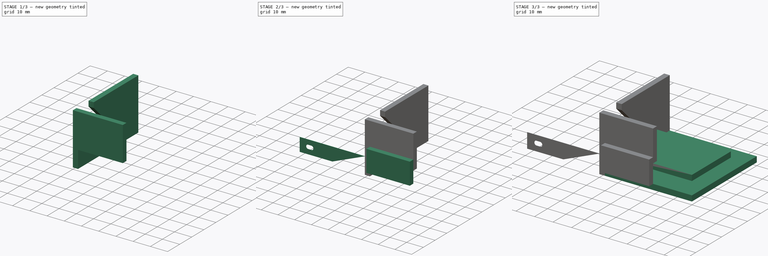
[diagram: build sequence overview — one tinted view per stage of 3, left to right]
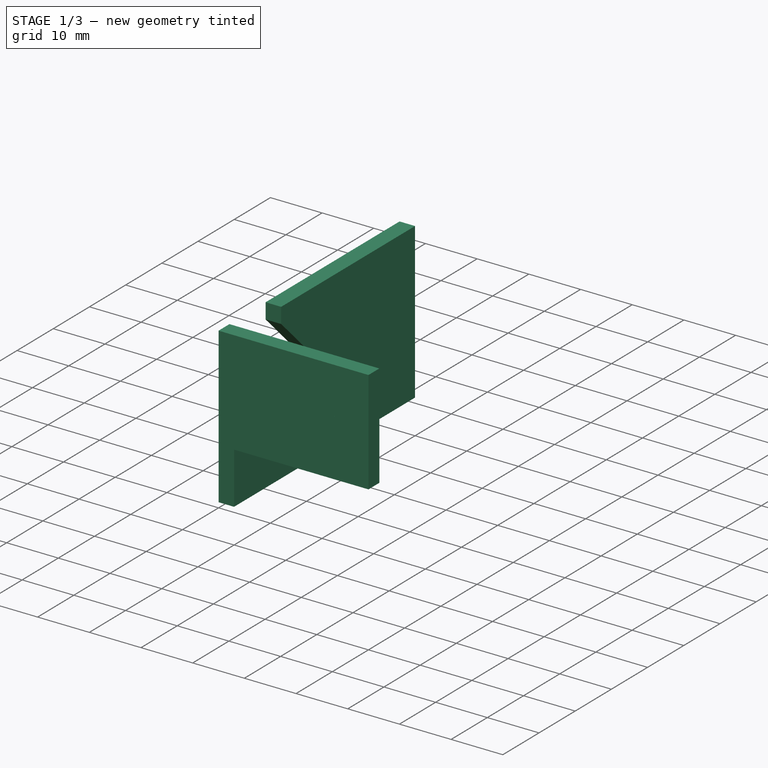
[diagram: stage 1 of 3 — iso view after this stage's code; geometry added in this stage tinted green]
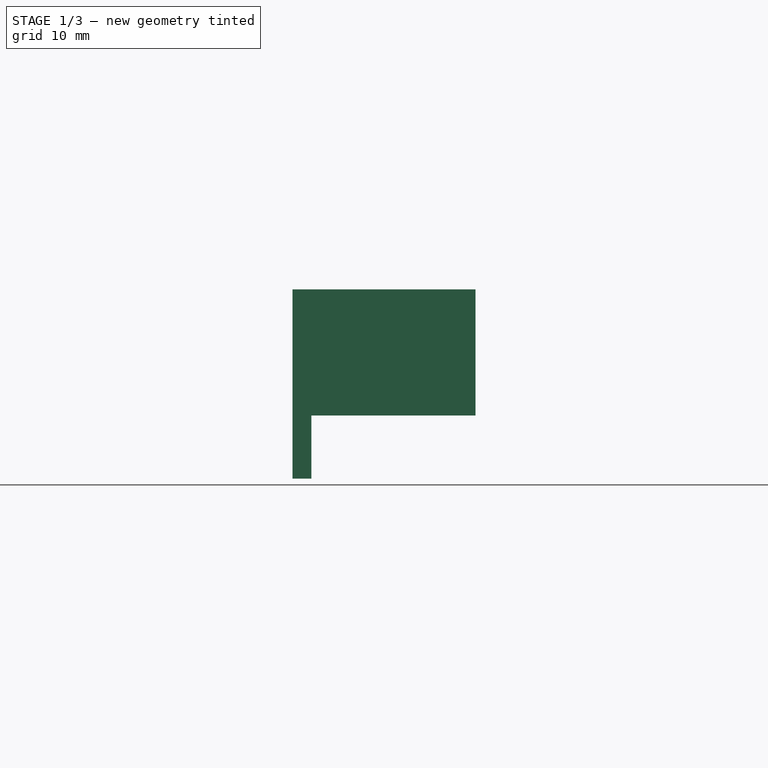
[diagram: stage 1 of 3 — front view after this stage's code; geometry added in this stage tinted green]
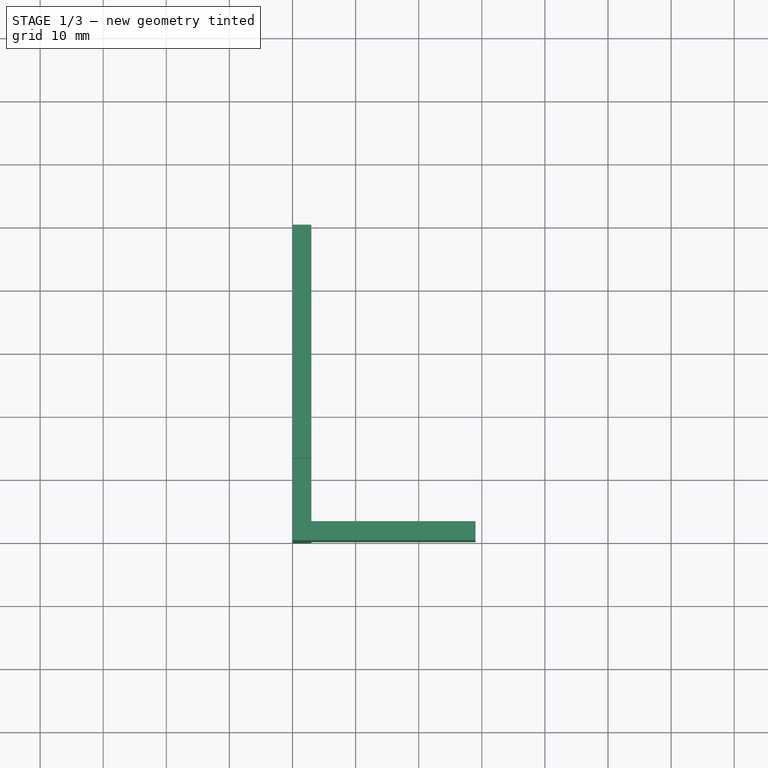
[diagram: stage 1 of 3 — top view after this stage's code; geometry added in this stage tinted green]
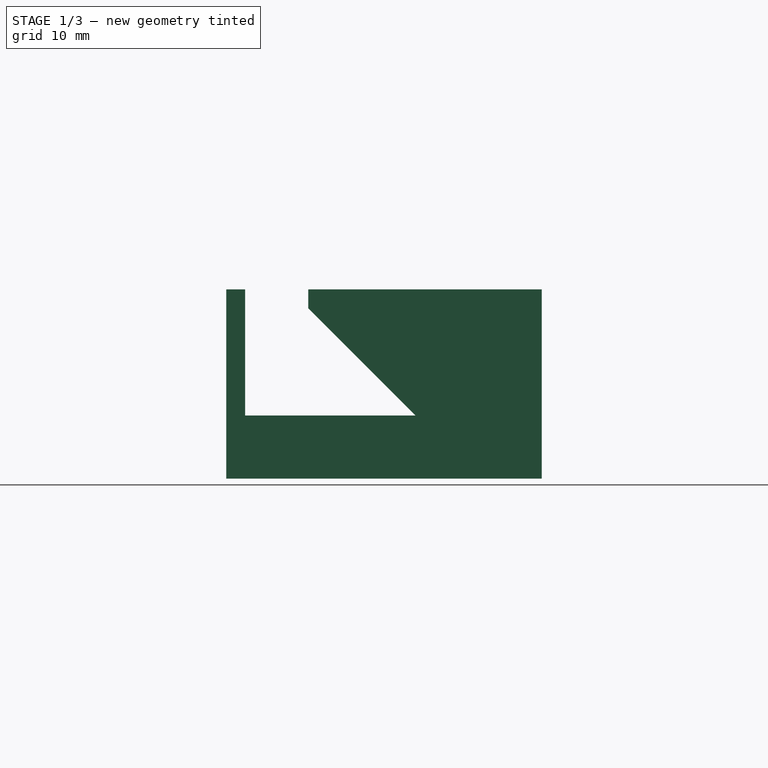
[diagram: stage 1 of 3 — right view after this stage's code; geometry added in this stage tinted green]
FCSTD DOCUMENT  (FreeCAD 0.20R29177 +233 (Git))
Label: mdf-taper-tool
License: All rights reserved
LicenseURL: http://en.wikipedia.org/wiki/All_rights_reserved
objects: Sketcher::SketchObject×8, PartDesign::Pad×8, PartDesign::Body×8, Part::Feature×8
note: 40 computed .brp shape members not serialized (recipe doc carries the construction recipe); baked Part::Feature solids carry a one-line shape summary decoded from their .brp

FEATURE [PartDesign::Body] Body001003006  label="blade"
  Group = -> [Sketch006,Pad006]
  Origin = -> Origin007
  Placement = pos=(49,31,-1) rot=(0.724677,0.636633,0.263709;1.03864rad)
  Tip = -> Pad006
FEATURE [Part::Feature] Body001003007  label="frame holder 90d001"
  shape: bbox 3 x 50 x 30 mm, 11 faces (baked)
FEATURE [Part::Feature] Body001003008  label="frame holder 90d002"
  Placement = pos=(29,0,0) rot=(0,0,1;0rad)
  shape: bbox 3 x 50 x 30 mm, 11 faces (baked)
FEATURE [Sketcher::SketchObject] Sketch007
  FullyConstrained = true
  MapMode = 5
  Placement = pos=(0,0,0) rot=(0.57735,0.57735,0.57735;2.0944rad)
  Support = -> [YZ_Plane008]
  sketch-geometry (7):
    g0: LineSegment StartX=0 StartY=0 StartZ=0 EndX=30 EndY=0 EndZ=0
    g1: LineSegment StartX=50 StartY=-10 StartZ=0 EndX=0 EndY=-10 EndZ=0
    g2: LineSegment StartX=0 StartY=-10 StartZ=0 EndX=0 EndY=0 EndZ=0
    g3: LineSegment StartX=50 StartY=20 StartZ=0 EndX=50 EndY=-10 EndZ=0
    g4: LineSegment StartX=30 StartY=0 StartZ=0 EndX=13 EndY=17 EndZ=0
    g5: LineSegment StartX=50 StartY=20 StartZ=0 EndX=13 EndY=20 EndZ=0
    g6: LineSegment StartX=13 StartY=20 StartZ=0 EndX=13 EndY=17 EndZ=0
  constraints (20):
    c: Coincident(g1,g2)
    c: Coincident(g2,g0)
    c: Horizontal(g0)
    c: Horizontal(g1)
    c: Vertical(g2)
    c: Coincident(g0,g-1)
    c: DistanceX(g1,g1) = 50
    c: DistanceY(g2,g2) = 10
    c: Coincident(g3,g1)
    c: Vertical(g3)
    c: DistanceY(g3,g3) = 30
    c: DistanceX(g0,g0) = 30
    c: Coincident(g5,g3)
    c: Horizontal(g5)
    c: Coincident(g6,g5)
    c: Coincident(g6,g4)
    c: Vertical(g6)
    c: DistanceX(g5,g5) = 37
    c: Coincident(g4,g0)
    c: Angle(g4,g0) = 0.785398
FEATURE [PartDesign::Pad] Pad007
  Direction = (1,-2e-16,3e-16)
  Length = 3
  Length2 = 10
  Placement = pos=(0,0,0) rot=(0.57735,0.57735,0.57735;2.0944rad)
  Profile = -> Sketch007
  ReferenceAxis = -> Sketch007 [N_Axis]
  Type = 0
FEATURE [PartDesign::Body] Body001003009  label="frame holder 45d"
  Group = -> [Sketch007,Pad007]
  Origin = -> Origin008
  Placement = pos=(-22,0,0) rot=(0,0,1;0rad)
  Tip = -> Pad007
FEATURE [Part::Feature] Body001003009001  label="frame holder 45d001"
  Placement = pos=(50,0,0) rot=(0,0,1;0rad)
  shape: bbox 3 x 50 x 30 mm, 9 faces (baked)
FEATURE [Sketcher::SketchObject] Sketch008
  FullyConstrained = false
  MapMode = 5
  Placement = pos=(0,0,0) rot=(1,0,0;1.5708rad)
  Support = -> [XZ_Plane010]
  sketch-geometry (5):
    g0: LineSegment StartX=0 StartY=0 StartZ=0 EndX=29 EndY=0 EndZ=0
    g1: LineSegment StartX=29 StartY=0 StartZ=0 EndX=29 EndY=20 EndZ=0
    g2: LineSegment StartX=29 StartY=20 StartZ=0 EndX=0 EndY=20 EndZ=0
    g3: LineSegment StartX=0 StartY=20 StartZ=0 EndX=0 EndY=0 EndZ=0
    g4: Circle CenterX=21.9541 CenterY=11.9751 CenterZ=0 NormalX=0 NormalY=0 NormalZ=1 AngleXU=0 Radius=1.05
  constraints (12):
    c: Coincident(g0,g1)
    c: Coincident(g1,g2)
    c: Coincident(g2,g3)
    c: Coincident(g3,g0)
    c: Horizontal(g0)
    c: Horizontal(g2)
    c: Vertical(g1)
    c: Vertical(g3)
    c: Coincident(g0,g-1)
    c: DistanceX(g2,g2) = 29
    c: DistanceY(g3,g3) = 20
    c: Diameter(g4) = 2.1
FEATURE [PartDesign::Pad] Pad008
  Direction = (0,-1,2e-16)
  Length = 3
  Length2 = 10
  Placement = pos=(0,0,0) rot=(1,0,0;1.5708rad)
  Profile = -> Sketch008
  ReferenceAxis = -> Sketch008 [N_Axis]
  Reversed = true
  Type = 0
FEATURE [PartDesign::Body] Body001003009002  label="blade_top_stabiliser"
  Group = -> [Sketch008,Pad008]
  Origin = -> Origin009
  Placement = pos=(0,27.2,3) rot=(1,0,0;0.785398rad)
  Tip = -> Pad008
FEATURE [Sketcher::SketchObject] Sketch009
  FullyConstrained = false
  MapMode = 5
  Placement = pos=(0,0,0) rot=(1,0,0;1.5708rad)
  Support = -> [XZ_Plane011]
  sketch-geometry (5):
    g0: LineSegment StartX=0 StartY=0 StartZ=0 EndX=24 EndY=0 EndZ=0
    g1: LineSegment StartX=24 StartY=0 StartZ=0 EndX=24 EndY=20 EndZ=0
    g2: LineSegment StartX=24 StartY=20 StartZ=0 EndX=0 EndY=20 EndZ=0
    g3: LineSegment StartX=0 StartY=20 StartZ=0 EndX=0 EndY=0 EndZ=0
    g4: Circle CenterX=12 CenterY=2.57064 CenterZ=0 NormalX=0 NormalY=0 NormalZ=1 AngleXU=0 Radius=1.05
  constraints (13):
    c: Coincident(g0,g1)
    c: Coincident(g1,g2)
    c: Coincident(g2,g3)
    c: Coincident(g3,g0)
    c: Horizontal(g0)
    c: Horizontal(g2)
    c: Vertical(g1)
    c: Vertical(g3)
    c: Coincident(g0,g-1)
    c: DistanceY(g3,g3) = 20
    c: DistanceX(g2,g2) = 24
    c: Diameter(g4) = 2.1
    c: DistanceX(g4,g0) = 12
FEATURE [PartDesign::Pad] Pad009
  Direction = (0,-1,-2e-16)
  Length = 3
  Length2 = 10
  Placement = pos=(0,0,0) rot=(1,0,0;1.5708rad)
  Profile = -> Sketch009
  ReferenceAxis = -> Sketch009 [N_Axis]
  Reversed = true
  Type = 0
FEATURE [PartDesign::Body] Body001003009003  label="blade_tip_stabiliser"
  Group = -> [Sketch009,Pad009]
  Origin = -> Origin010
  Placement = pos=(29,27.2,3) rot=(1,0,0;0.785398rad)
  Tip = -> Pad009
FEATURE [Part::Feature] Body001003009004  label="horizontal001"
  Placement = pos=(0,0,-3) rot=(0,0,1;0rad)
  shape: bbox 47 x 30 x 3 mm, 6 faces (baked)
FEATURE [Part::Feature] Body001003003001  label="bottom_horizontal001"
  shape: bbox 47 x 50 x 3 mm, 6 faces (baked)
FEATURE [Part::Feature] Body001003004001  label="side_evener001"
  Placement = pos=(0,33,0) rot=(0,0,1;0rad)
  shape: bbox 26 x 3 x 13 mm, 6 faces (baked)
FEATURE [Part::Feature] Body001003009002001  label="blade_top_stabiliser001"
  Placement = pos=(0,27.2,3) rot=(1,0,0;0.785398rad)
  shape: bbox 29 x 16.26 x 16.26 mm, 7 faces (baked)
FEATURE [Part::Feature] Body001003009003001  label="blade_tip_stabiliser001"
  Placement = pos=(29,27.2,3) rot=(1,0,0;0.785398rad)
  shape: bbox 24 x 16.26 x 16.26 mm, 7 faces (baked)
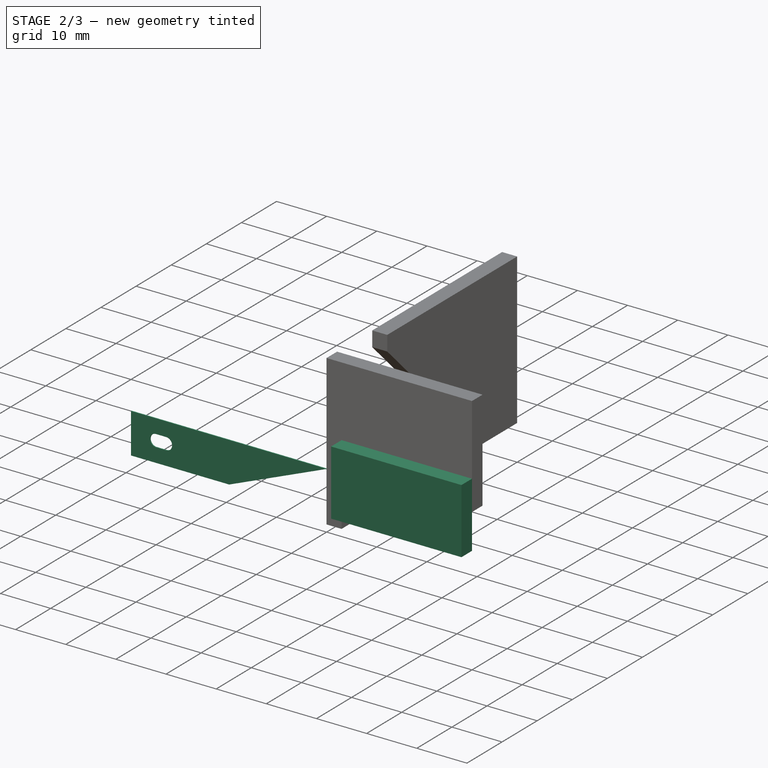
[diagram: stage 2 of 3 — iso view after this stage's code; geometry added in this stage tinted green]
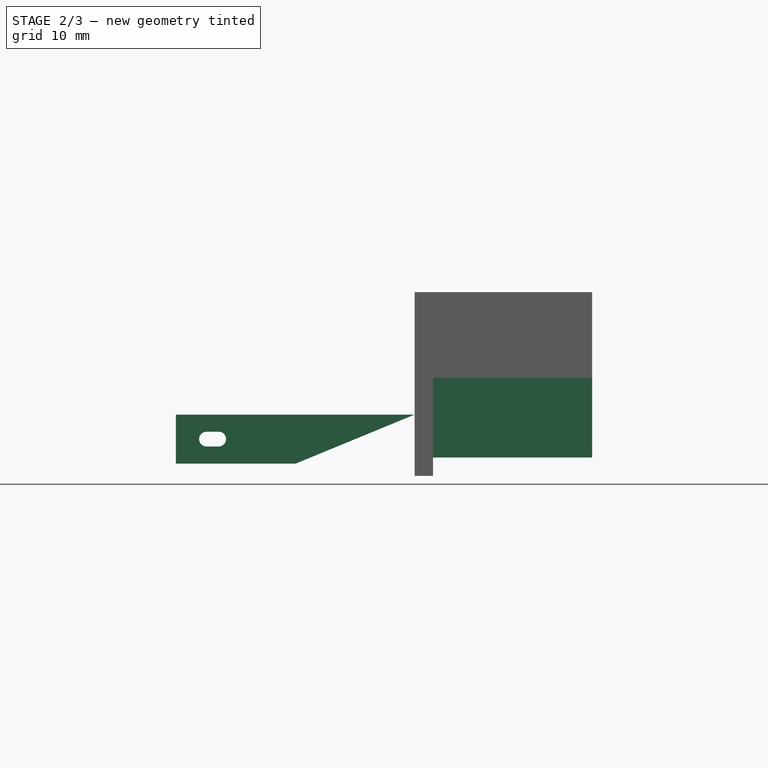
[diagram: stage 2 of 3 — front view after this stage's code; geometry added in this stage tinted green]
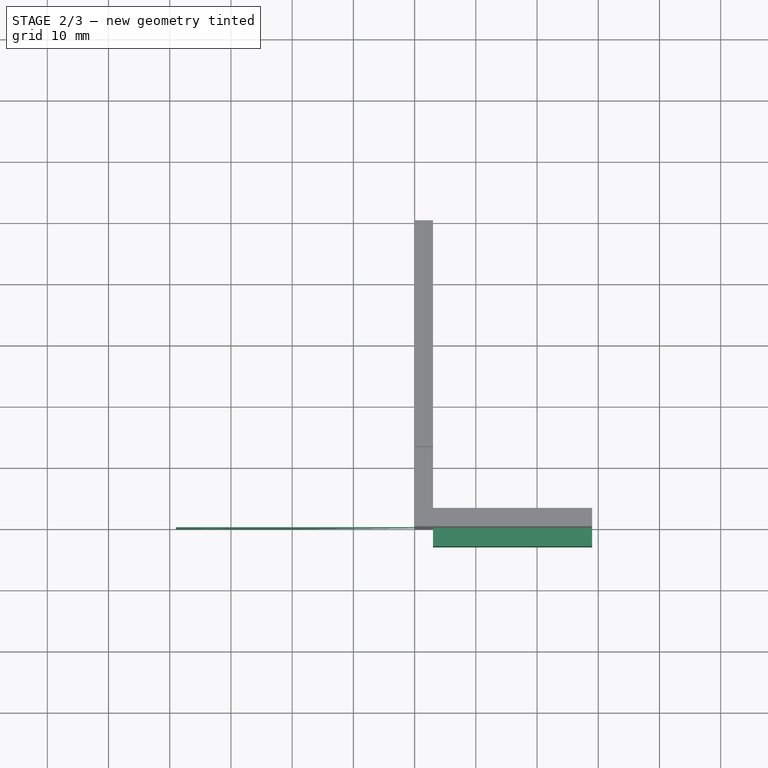
[diagram: stage 2 of 3 — top view after this stage's code; geometry added in this stage tinted green]
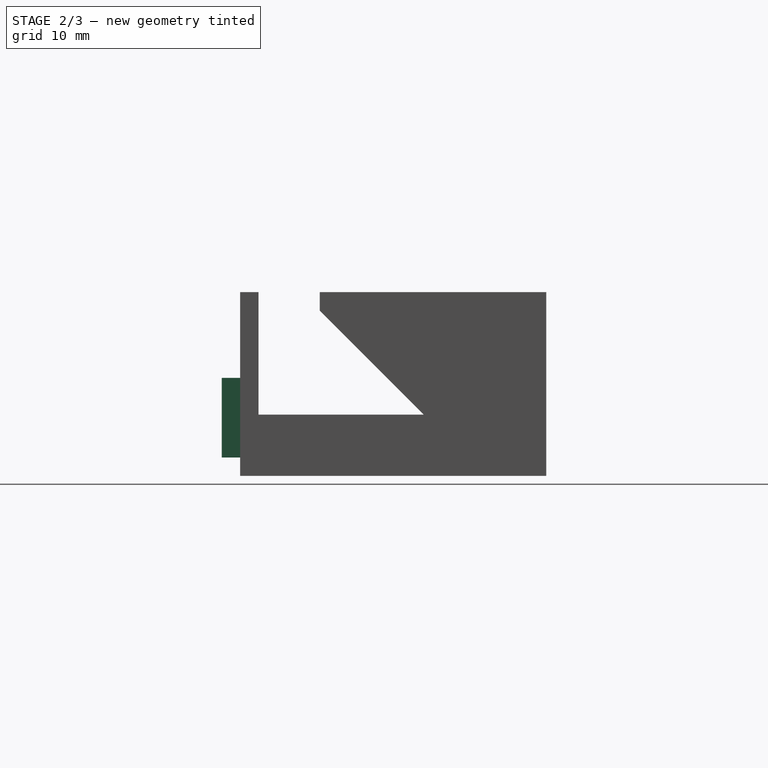
[diagram: stage 2 of 3 — right view after this stage's code; geometry added in this stage tinted green]
FEATURE [PartDesign::Body] Body001003003  label="bottom_horizontal"
  Group = -> [Sketch003,Pad003]
  Origin = -> Origin003
  Tip = -> Pad003
FEATURE [Sketcher::SketchObject] Sketch004
  FullyConstrained = true
  MapMode = 5
  Placement = pos=(0,0,0) rot=(1,0,0;1.5708rad)
  Support = -> [XZ_Plane004]
  sketch-geometry (4):
    g0: LineSegment StartX=3 StartY=6 StartZ=0 EndX=29 EndY=6 EndZ=0
    g1: LineSegment StartX=29 StartY=6 StartZ=0 EndX=29 EndY=-7 EndZ=0
    g2: LineSegment StartX=29 StartY=-7 StartZ=0 EndX=3 EndY=-7 EndZ=0
    g3: LineSegment StartX=3 StartY=-7 StartZ=0 EndX=3 EndY=6 EndZ=0
  constraints (12):
    c: Coincident(g0,g1)
    c: Coincident(g1,g2)
    c: Coincident(g2,g3)
    c: Coincident(g3,g0)
    c: Horizontal(g0)
    c: Horizontal(g2)
    c: Vertical(g1)
    c: Vertical(g3)
    c: DistanceX(g0,g0) = 26
    c: DistanceY(g1,g1) = 13
    c: DistanceY(g2,g-1) = 7
    c: DistanceX(g-1,g2) = 3
FEATURE [PartDesign::Pad] Pad004
  Direction = (0,-1,-2e-16)
  Length = 3
  Length2 = 10
  Placement = pos=(0,0,0) rot=(1,0,0;1.5708rad)
  Profile = -> Sketch004
  ReferenceAxis = -> Sketch004 [N_Axis]
  Type = 0
FEATURE [PartDesign::Body] Body001003004  label="side_evener"
  Group = -> [Sketch004,Pad004]
  Origin = -> Origin004
  Placement = pos=(0,33,0) rot=(0,0,1;0rad)
  Tip = -> Pad004
FEATURE [Sketcher::SketchObject] Sketch006
  FullyConstrained = true
  MapMode = 5
  Placement = pos=(0,0,0) rot=(1,0,0;1.5708rad)
  Support = -> [XZ_Plane008]
  sketch-geometry (8):
    g0: LineSegment StartX=-39 StartY=0 StartZ=0 EndX=0 EndY=0 EndZ=0
    g1: LineSegment StartX=0 StartY=0 StartZ=0 EndX=-19.4165 EndY=-8 EndZ=0
    g2: LineSegment StartX=-19.4165 StartY=-8 StartZ=0 EndX=-39 EndY=-8 EndZ=0
    g3: LineSegment StartX=-39 StartY=-8 StartZ=0 EndX=-39 EndY=0 EndZ=0
    g4: ArcOfCircle CenterX=-34 CenterY=-4 CenterZ=0 NormalX=0 NormalY=0 NormalZ=1 AngleXU=0 Radius=1.2 StartAngle=1.5708 EndAngle=4.71239
    g5: ArcOfCircle CenterX=-32 CenterY=-4 CenterZ=0 NormalX=0 NormalY=0 NormalZ=1 AngleXU=0 Radius=1.2 StartAngle=4.71239 EndAngle=7.85398
    g6: LineSegment StartX=-34 StartY=-5.2 StartZ=0 EndX=-32 EndY=-5.2 EndZ=0
    g7: LineSegment StartX=-32 StartY=-2.8 StartZ=0 EndX=-34 EndY=-2.8 EndZ=0
  constraints (21):
    c: Horizontal(g0)
    c: DistanceX(g0,g0) = 39
    c: Coincident(g1,g0)
    c: Distance(g1) = 21
    c: Coincident(g2,g1)
    c: Horizontal(g2)
    c: Coincident(g3,g2)
    c: Coincident(g3,g0)
    c: Vertical(g3)
    c: DistanceY(g2,g0) = 8
    c: Tangent(g4,g6) = -1.5708
    c: Tangent(g6,g5) = -1.5708
    c: Tangent(g5,g7) = -1.5708
    c: Tangent(g7,g4) = -1.5708
    c: Equal(g4,g5)
    c: Horizontal(g6)
    c: Radius(g4) = 1.2
    c: DistanceX(g0,g4) = 5
    c: DistanceX(g4,g5) = 2
    c: DistanceY(g4,g0) = 4
    c: Coincident(g0,g-1)
FEATURE [PartDesign::Pad] Pad006
  Direction = (0,-1,2e-16)
  Length = 0.2
  Length2 = 10
  Placement = pos=(0,0,0) rot=(1,0,0;1.5708rad)
  Profile = -> Sketch006
  ReferenceAxis = -> Sketch006 [N_Axis]
  Reversed = true
  Type = 0
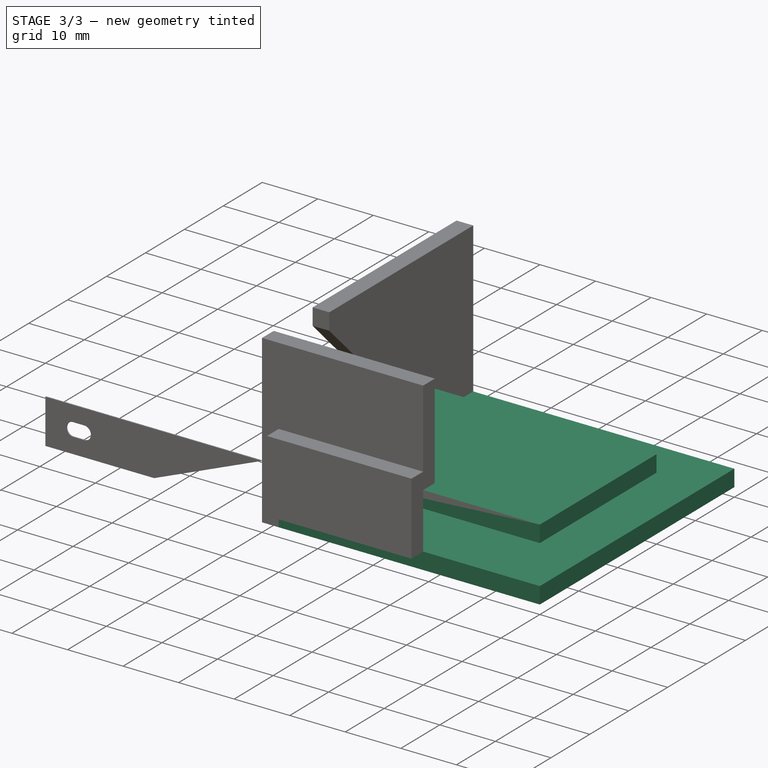
[diagram: stage 3 of 3 — iso view after this stage's code; geometry added in this stage tinted green]
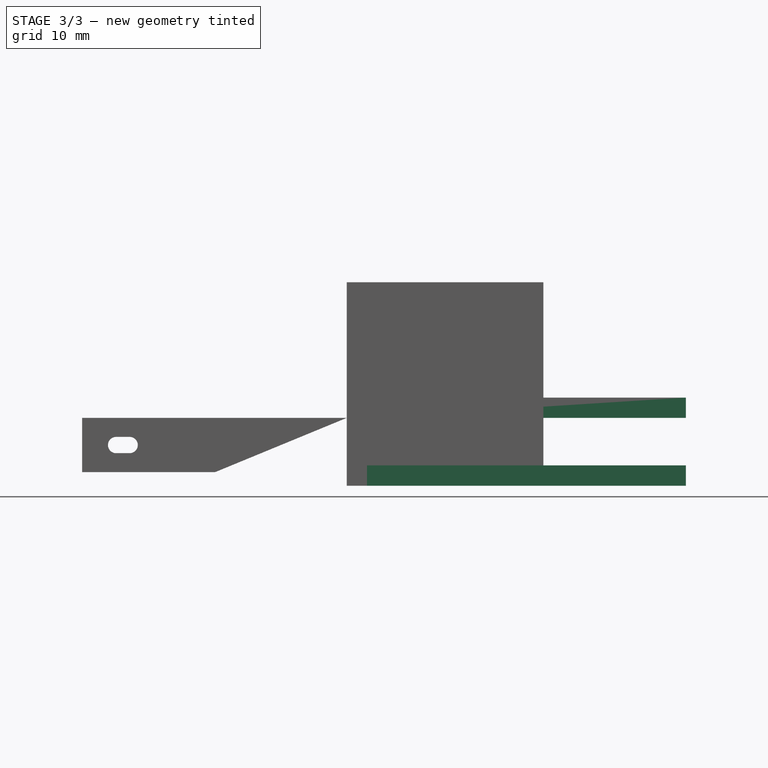
[diagram: stage 3 of 3 — front view after this stage's code; geometry added in this stage tinted green]
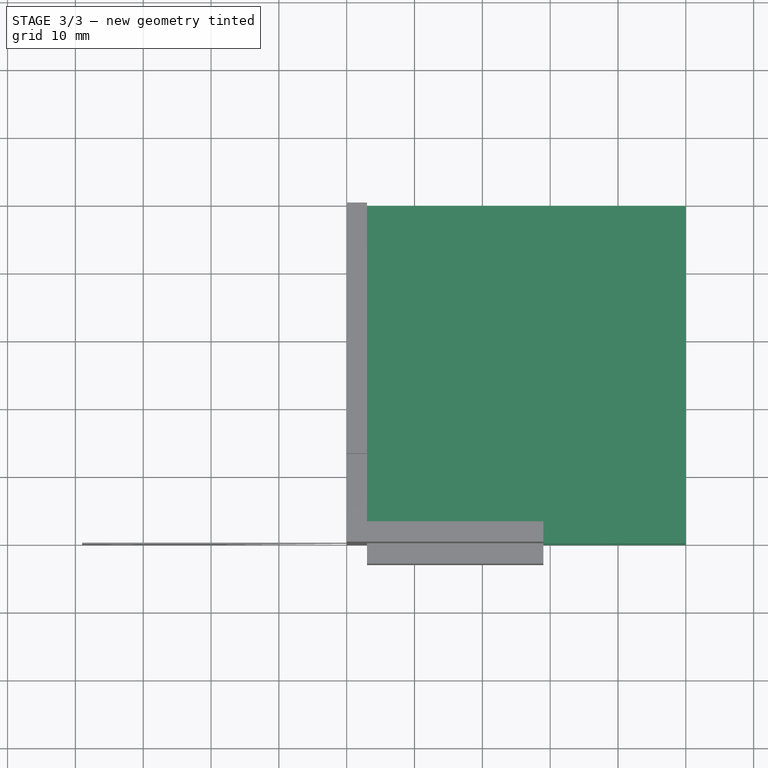
[diagram: stage 3 of 3 — top view after this stage's code; geometry added in this stage tinted green]
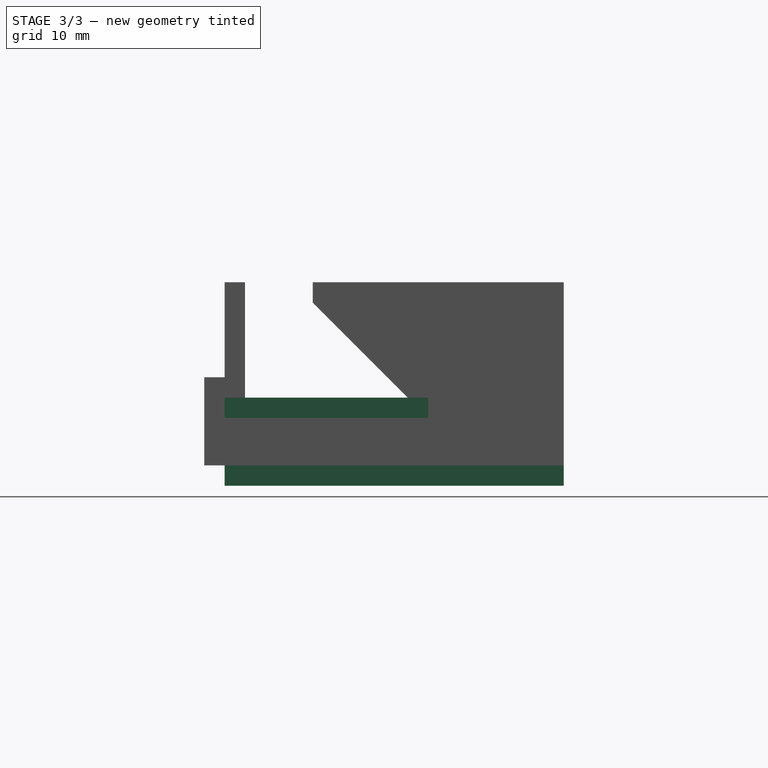
[diagram: stage 3 of 3 — right view after this stage's code; geometry added in this stage tinted green]
FEATURE [Sketcher::SketchObject] Sketch001
  FullyConstrained = true
  MapMode = 5
  Placement = pos=(0,0,0) rot=(0.57735,0.57735,0.57735;2.0944rad)
  Support = -> [YZ_Plane001]
  sketch-geometry (9):
    g0: LineSegment StartX=0 StartY=0 StartZ=0 EndX=30 EndY=0 EndZ=0
    g1: LineSegment StartX=50 StartY=-10 StartZ=0 EndX=0 EndY=-10 EndZ=0
    g2: LineSegment StartX=0 StartY=-10 StartZ=0 EndX=0 EndY=0 EndZ=0
    g3: LineSegment StartX=30 StartY=0 StartZ=0 EndX=30 EndY=3 EndZ=0
    g4: LineSegment StartX=50 StartY=20 StartZ=0 EndX=50 EndY=-10 EndZ=0
    g5: LineSegment StartX=27.2 StartY=3 StartZ=0 EndX=30 EndY=3 EndZ=0
    g6: LineSegment StartX=27.2 StartY=3 StartZ=0 EndX=13 EndY=17.2 EndZ=0
    g7: LineSegment StartX=50 StartY=20 StartZ=0 EndX=13 EndY=20 EndZ=0
    g8: LineSegment StartX=13 StartY=20 StartZ=0 EndX=13 EndY=17.2 EndZ=0
  constraints (26):
    c: Coincident(g1,g2)
    c: Coincident(g2,g0)
    c: Horizontal(g0)
    c: Horizontal(g1)
    c: Vertical(g2)
    c: Coincident(g0,g-1)
    c: DistanceX(g1,g1) = 50
    c: DistanceY(g2,g2) = 10
    c: Vertical(g3)
    c: Coincident(g3,g0)
    c: Coincident(g4,g1)
    c: Vertical(g4)
    c: DistanceY(g4,g4) = 30
    c: Horizontal(g5)
    c: DistanceY(g3,g3) = 3
    c: Coincident(g3,g5)
    c: DistanceX(g0,g0) = 30
    c: Coincident(g7,g4)
    c: Horizontal(g7)
    c: Coincident(g8,g7)
    c: Coincident(g8,g6)
    c: Vertical(g8)
    c: DistanceX(g7,g7) = 37
    c: Coincident(g6,g5)
    c: DistanceX(g5,g5) = 2.8
    c: Angle(g5,g6) = 2.35619
FEATURE [PartDesign::Pad] Pad001
  Direction = (1,-2e-16,3e-16)
  Length = 3
  Length2 = 10
  Placement = pos=(0,0,0) rot=(0.57735,0.57735,0.57735;2.0944rad)
  Profile = -> Sketch001
  ReferenceAxis = -> Sketch001 [N_Axis]
  Type = 0
FEATURE [PartDesign::Body] Body001  label="frame holder 90d"
  Group = -> [Sketch001,Pad001]
  Origin = -> Origin001
  Placement = pos=(-30,0,0) rot=(0,0,1;0rad)
  Tip = -> Pad001
FEATURE [Sketcher::SketchObject] Sketch
  FullyConstrained = true
  MapMode = 5
  Support = -> [XY_Plane]
  sketch-geometry (4):
    g0: LineSegment StartX=3 StartY=0 StartZ=0 EndX=50 EndY=0 EndZ=0
    g1: LineSegment StartX=50 StartY=0 StartZ=0 EndX=50 EndY=30 EndZ=0
    g2: LineSegment StartX=50 StartY=30 StartZ=0 EndX=3 EndY=30 EndZ=0
    g3: LineSegment StartX=3 StartY=30 StartZ=0 EndX=3 EndY=0 EndZ=0
  constraints (12):
    c: Coincident(g0,g1)
    c: Coincident(g1,g2)
    c: Coincident(g2,g3)
    c: Coincident(g3,g0)
    c: Horizontal(g0)
    c: Horizontal(g2)
    c: Vertical(g1)
    c: Vertical(g3)
    c: DistanceY(g3,g3) = 30
    c: DistanceX(g0,g0) = 47
    c: DistanceX(g-1,g0) = 3
    c: Horizontal(g0,g-1)
FEATURE [PartDesign::Pad] Pad
  Direction = (0,0,1)
  Length = 3
  Length2 = 10
  Profile = -> Sketch
  ReferenceAxis = -> Sketch [N_Axis]
  Type = 0
FEATURE [PartDesign::Body] Body  label="horizontal"
  Group = -> [Sketch,Pad]
  Origin = -> Origin
  Placement = pos=(0,0,-3) rot=(0,0,1;0rad)
  Tip = -> Pad
FEATURE [Sketcher::SketchObject] Sketch003
  AttachmentOffset = pos=(0,0,-10) rot=(0,0,1;0rad)
  FullyConstrained = true
  MapMode = 5
  Placement = pos=(0,0,-10) rot=(0,0,1;0rad)
  Support = -> [XY_Plane003]
  sketch-geometry (4):
    g0: LineSegment StartX=3 StartY=0 StartZ=0 EndX=50 EndY=0 EndZ=0
    g1: LineSegment StartX=50 StartY=0 StartZ=0 EndX=50 EndY=50 EndZ=0
    g2: LineSegment StartX=50 StartY=50 StartZ=0 EndX=3 EndY=50 EndZ=0
    g3: LineSegment StartX=3 StartY=50 StartZ=0 EndX=3 EndY=0 EndZ=0
  constraints (12):
    c: Coincident(g0,g1)
    c: Coincident(g1,g2)
    c: Coincident(g2,g3)
    c: Coincident(g3,g0)
    c: Horizontal(g0)
    c: Horizontal(g2)
    c: Vertical(g1)
    c: Vertical(g3)
    c: DistanceX(g0,g0) = 47
    c: DistanceY(g1,g1) = 50
    c: DistanceX(g-1,g0) = 3
    c: Horizontal(g-1,g0)
FEATURE [PartDesign::Pad] Pad003
  Direction = (0,0,1)
  Length = 3
  Length2 = 10
  Profile = -> Sketch003
  ReferenceAxis = -> Sketch003 [N_Axis]
  Type = 0
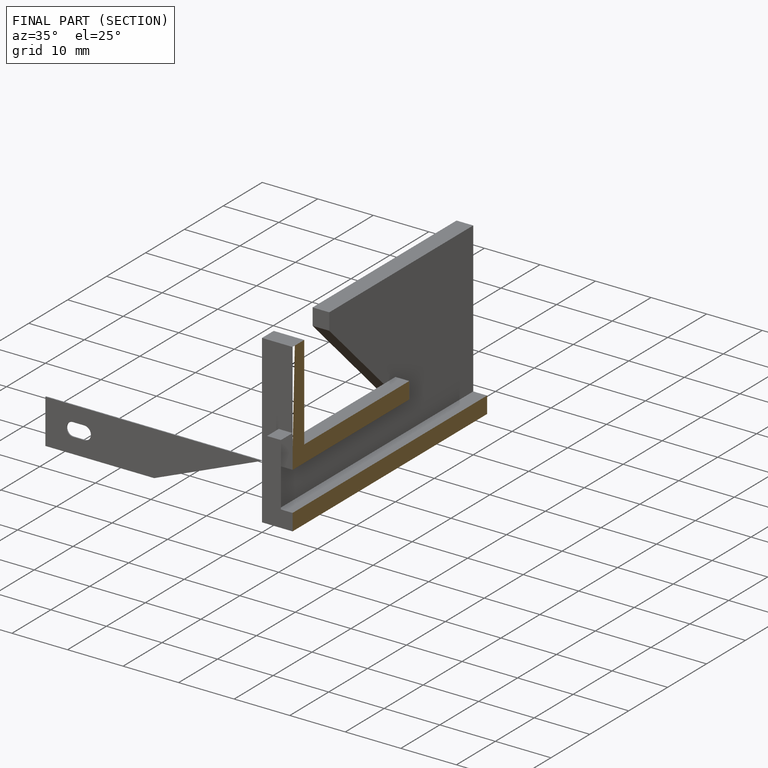
[diagram: finished part — half-section view (interior)]
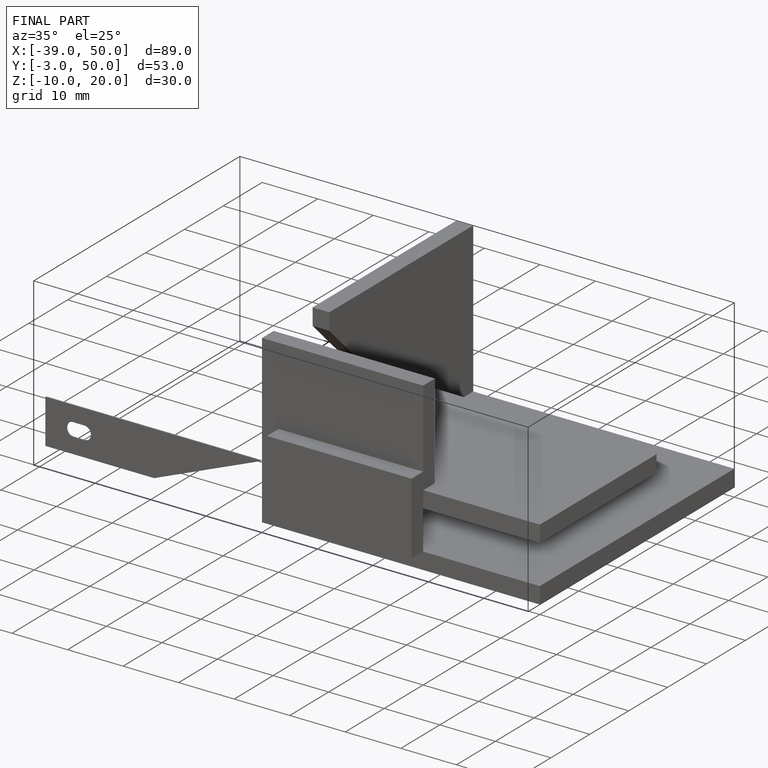
[diagram: finished part — iso view with bounding-box wireframe]
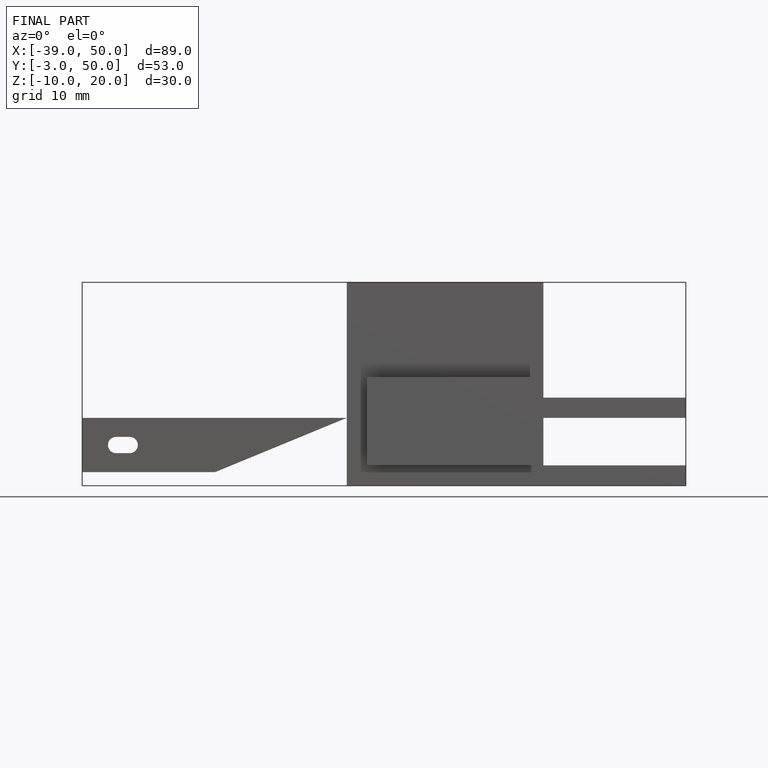
[diagram: finished part — front view with bounding-box wireframe]
